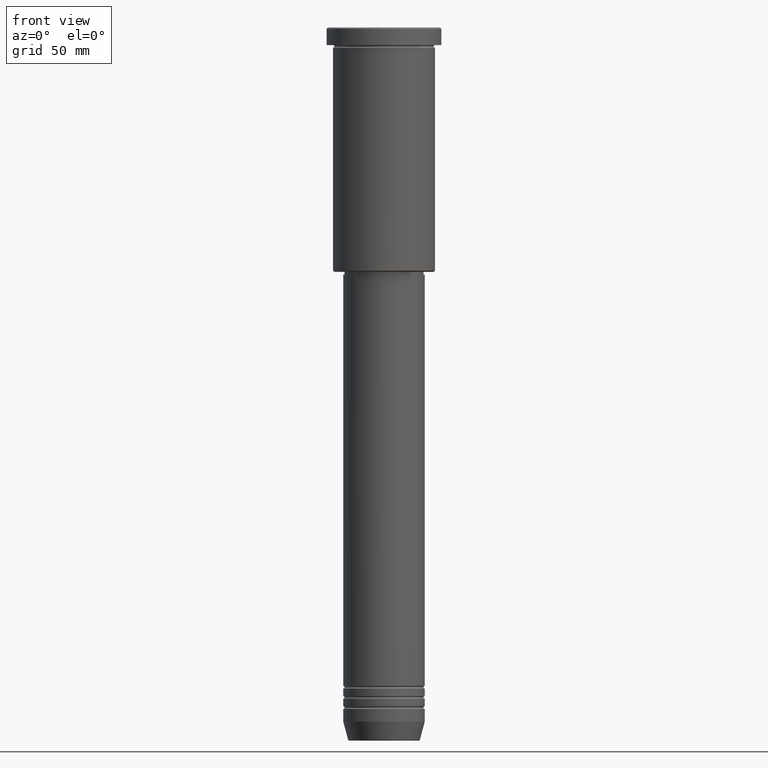
[diagram: clean part render]
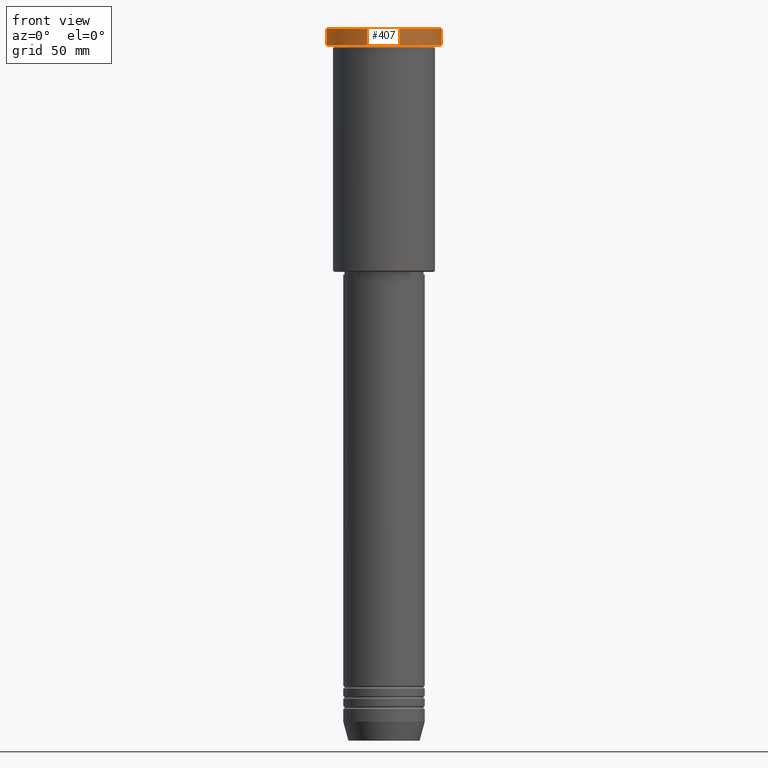
[diagram: same view with one face highlighted and labeled with its STEP entity id]
A machine part, front view. The second image highlights one B-rep face of the part: STEP entity #407.
In plain terms, the highlighted cylindrical surface (partial cylindrical patch) has radius 22.5 mm, axis along (-0, -0, 1).
Its self-contained STEP definition (entity closure, byte-faithful):
#79 = ORIENTED_EDGE ( 'NONE', *, *, #1016, .T. ) ;
#94 = CYLINDRICAL_SURFACE ( 'NONE', #889, 22.50000000000000000 ) ;
#160 = VERTEX_POINT ( 'NONE', #433 ) ;
#167 = EDGE_CURVE ( 'NONE', #394, #1009, #626, .T. ) ;
#171 = DIRECTION ( 'NONE',  ( -0.000000000000000000, -0.000000000000000000, 1.000000000000000000 ) ) ;
#184 = CARTESIAN_POINT ( 'NONE',  ( 0.000000000000000000, 0.000000000000000000, 0.000000000000000000 ) ) ;
#301 = CARTESIAN_POINT ( 'NONE',  ( 22.50000000000000000, 0.000000000000000000, -0.4999999999999379940 ) ) ;
#317 = DIRECTION ( 'NONE',  ( 0.000000000000000000, 0.000000000000000000, -1.000000000000000000 ) ) ;
#331 = VECTOR ( 'NONE', #568, 1000.000000000000000 ) ;
#334 = ORIENTED_EDGE ( 'NONE', *, *, #167, .T. ) ;
#364 = EDGE_CURVE ( 'NONE', #566, #160, #563, .T. ) ;
#394 = VERTEX_POINT ( 'NONE', #632 ) ;
#407 = ADVANCED_FACE ( 'NONE', ( #911 ), #94, .T. ) ;
#433 = CARTESIAN_POINT ( 'NONE',  ( -22.50000000000000000, 2.755455298081544778E-15, -0.4999999999999379940 ) ) ;
#500 = CARTESIAN_POINT ( 'NONE',  ( 0.000000000000000000, 0.000000000000000000, -0.4999999999999379940 ) ) ;
#527 = DIRECTION ( 'NONE',  ( 1.000000000000000000, 0.000000000000000000, 0.000000000000000000 ) ) ;
#544 = DIRECTION ( 'NONE',  ( -0.000000000000000000, -0.000000000000000000, 1.000000000000000000 ) ) ;
#556 = CIRCLE ( 'NONE', #1061, 22.50000000000000000 ) ;
#563 = LINE ( 'NONE', #994, #331 ) ;
#566 = VERTEX_POINT ( 'NONE', #758 ) ;
#568 = DIRECTION ( 'NONE',  ( -0.000000000000000000, -0.000000000000000000, 1.000000000000000000 ) ) ;
#578 = ORIENTED_EDGE ( 'NONE', *, *, #364, .F. ) ;
#626 = LINE ( 'NONE', #1078, #779 ) ;
#632 = CARTESIAN_POINT ( 'NONE',  ( 22.50000000000000000, 0.000000000000000000, -6.999999999999995559 ) ) ;
#643 = DIRECTION ( 'NONE',  ( 1.000000000000000000, 0.000000000000000000, 0.000000000000000000 ) ) ;
#758 = CARTESIAN_POINT ( 'NONE',  ( -22.50000000000000000, 2.755455298081544778E-15, -6.999999999999995559 ) ) ;
#771 = EDGE_CURVE ( 'NONE', #566, #394, #556, .T. ) ;
#779 = VECTOR ( 'NONE', #883, 1000.000000000000000 ) ;
#866 = CIRCLE ( 'NONE', #1022, 22.50000000000000000 ) ;
#883 = DIRECTION ( 'NONE',  ( -0.000000000000000000, -0.000000000000000000, 1.000000000000000000 ) ) ;
#889 = AXIS2_PLACEMENT_3D ( 'NONE', #184, #544, #643 ) ;
#911 = FACE_OUTER_BOUND ( 'NONE', #1014, .T. ) ;
#931 = ORIENTED_EDGE ( 'NONE', *, *, #771, .T. ) ;
#994 = CARTESIAN_POINT ( 'NONE',  ( -22.50000000000000000, 2.755455298081544778E-15, 0.000000000000000000 ) ) ;
#1009 = VERTEX_POINT ( 'NONE', #301 ) ;
#1014 = EDGE_LOOP ( 'NONE', ( #578, #931, #334, #79 ) ) ;
#1016 = EDGE_CURVE ( 'NONE', #1009, #160, #866, .T. ) ;
#1022 = AXIS2_PLACEMENT_3D ( 'NONE', #500, #317, #1039 ) ;
#1039 = DIRECTION ( 'NONE',  ( 1.000000000000000000, 0.000000000000000000, 0.000000000000000000 ) ) ;
#1061 = AXIS2_PLACEMENT_3D ( 'NONE', #1067, #171, #527 ) ;
#1067 = CARTESIAN_POINT ( 'NONE',  ( 0.000000000000000000, 0.000000000000000000, -6.999999999999995559 ) ) ;
#1078 = CARTESIAN_POINT ( 'NONE',  ( 22.50000000000000000, 0.000000000000000000, 0.000000000000000000 ) ) ;